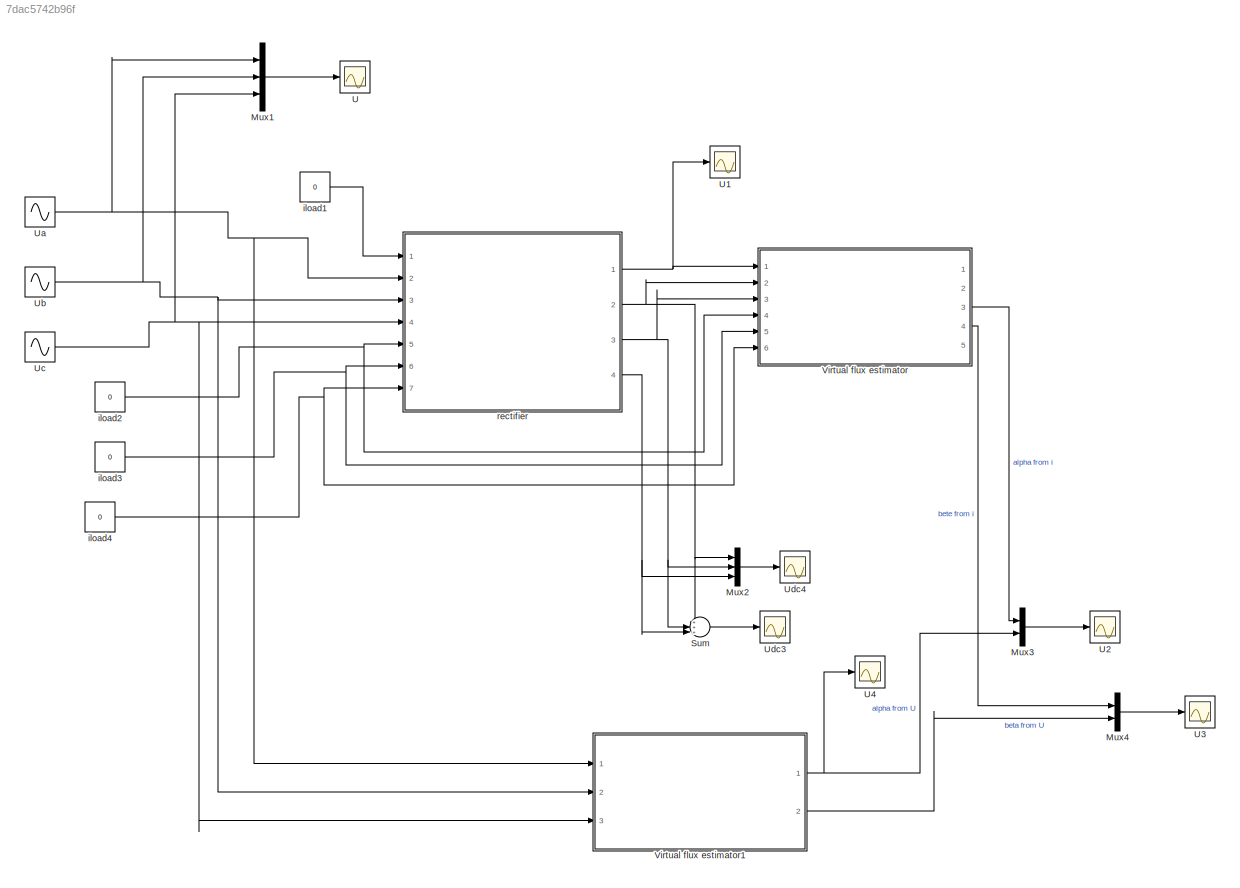
MODEL slx_7dac5742b96f
KIND model
CONFIG AbsTol = auto
CONFIG FixedStep = Ts
CONFIG MaxStep = auto
CONFIG MinStep = auto
CONFIG RelTol = 1e-3
CONFIG SampleTimeConstraint = Unconstrained
CONFIG Solver = ode3
CONFIG SolverMode = Auto
CONFIG SolverName = ode3
CONFIG StartTime = 0.0
CONFIG StopTime = 1
BLOCK [Mux] Mux1
  DisplayOption = bar
  Inputs = 3
  Ports = [3, 1]
BLOCK [Mux] Mux2
  DisplayOption = bar
  Inputs = 3
  Ports = [3, 1]
BLOCK [Mux] Mux3
  DisplayOption = bar
  Inputs = 2
  Ports = [2, 1]
BLOCK [Mux] Mux4
  DisplayOption = bar
  Inputs = 2
  Ports = [2, 1]
BLOCK [Sum] Sum
  IconShape = round
  InputSameDT = off
  Inputs = +++
  OutDataTypeStr = Inherit: Inherit via internal rule
  Ports = [3, 1]
  SaturateOnIntegerOverflow = off
BLOCK [Scope] U
  Floating = off
  LimitDataPoints = off
  NumInputPorts = 1
  Ports = [1]
  SaveName = Udc_plot
  SaveToWorkspace = on
  ShowLegends = on
  YMax = 800
  YMin = -800
  ZoomMode = xonly
BLOCK [Scope] U1
  Floating = off
  LimitDataPoints = off
  NumInputPorts = 1
  Ports = [1]
  SaveName = Udc_plot1
  SaveToWorkspace = on
  ShowLegends = on
  YMax = 800
  YMin = -800
  ZoomMode = xonly
BLOCK [Scope] U2
  Floating = off
  LegendLocations = 0.89097     0.91727    0.061979    0.037539
  LimitDataPoints = off
  NumInputPorts = 1
  Ports = [1]
  SaveName = Udc_plot4
  SaveToWorkspace = on
  ShowLegends = on
  YMax = 800
  YMin = -800
  ZoomMode = xonly
BLOCK [Scope] U3
  Floating = off
  LimitDataPoints = off
  NumInputPorts = 1
  Ports = [1]
  SaveName = Udc_plot5
  SaveToWorkspace = on
  ShowLegends = on
  YMax = 800
  YMin = -800
  ZoomMode = xonly
BLOCK [Scope] U4
  Floating = off
  LimitDataPoints = off
  NumInputPorts = 1
  Ports = [1]
  SaveName = Udc_plot6
  SaveToWorkspace = on
  ShowLegends = on
  YMax = 2.5
  YMin = -0.25
  ZoomMode = xonly
BLOCK [Sin] Ua
  Amplitude = U
  Frequency = w
  Ports = [0, 1]
  SampleTime = 0
BLOCK [Sin] Ub
  Amplitude = U
  Frequency = w
  Phase = -2*pi/3
  Ports = [0, 1]
  SampleTime = 0
BLOCK [Sin] Uc
  Amplitude = U
  Frequency = w
  Phase = -4*pi/3
  Ports = [0, 1]
  SampleTime = 0
BLOCK [Scope] Udc3
  Floating = off
  LimitDataPoints = off
  NumInputPorts = 1
  Ports = [1]
  SaveName = Udc_plot2
  SaveToWorkspace = on
  ShowLegends = on
  YMax = 800
  YMin = -800
  ZoomMode = xonly
BLOCK [Scope] Udc4
  Floating = off
  LegendLocations = 0.92691     0.93361    0.054687    0.053876
  LimitDataPoints = off
  NumInputPorts = 1
  Ports = [1]
  SaveName = Udc_plot3
  SaveToWorkspace = on
  ShowLegends = on
  YMax = 800
  YMin = -800
  ZoomMode = xonly
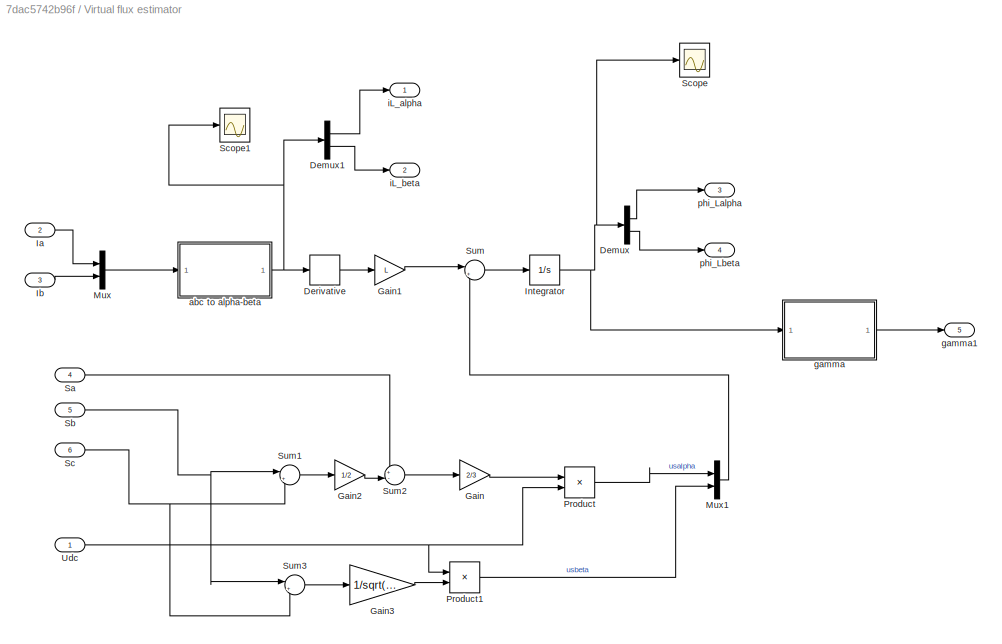
BLOCK [SubSystem] Virtual flux estimator
  Ports = [6, 5]
  RequestExecContextInheritance = off
BLOCK [Demux] Virtual flux estimator/Demux
  DisplayOption = bar
  Outputs = 2
  Ports = [1, 2]
BLOCK [Demux] Virtual flux estimator/Demux1
  DisplayOption = bar
  Outputs = 2
  Ports = [1, 2]
BLOCK [Derivative] Virtual flux estimator/Derivative
BLOCK [Gain] Virtual flux estimator/Gain
  Gain = 2/3
  OutDataTypeStr = Inherit: Inherit via internal rule
  ParamDataTypeStr = Inherit: Inherit via internal rule
  SaturateOnIntegerOverflow = off
BLOCK [Gain] Virtual flux estimator/Gain1
  Gain = L
  OutDataTypeStr = Inherit: Inherit via internal rule
  ParamDataTypeStr = Inherit: Inherit via internal rule
  SaturateOnIntegerOverflow = off
BLOCK [Gain] Virtual flux estimator/Gain2
  Gain = 1/2
  OutDataTypeStr = Inherit: Inherit via internal rule
  ParamDataTypeStr = Inherit: Inherit via internal rule
  SaturateOnIntegerOverflow = off
BLOCK [Gain] Virtual flux estimator/Gain3
  Gain = 1/sqrt(3)
  OutDataTypeStr = Inherit: Inherit via internal rule
  ParamDataTypeStr = Inherit: Inherit via internal rule
  SaturateOnIntegerOverflow = off
BLOCK [Inport] Virtual flux estimator/Ia
  IconDisplay = Port number
  Port = 2
BLOCK [Inport] Virtual flux estimator/Ib
  IconDisplay = Port number
  Port = 3
BLOCK [Integrator] Virtual flux estimator/Integrator
  Ports = [1, 1]
BLOCK [Mux] Virtual flux estimator/Mux
  DisplayOption = bar
  Inputs = 2
  Ports = [2, 1]
BLOCK [Mux] Virtual flux estimator/Mux1
  DisplayOption = bar
  Inputs = 2
  Ports = [2, 1]
BLOCK [Product] Virtual flux estimator/Product
  InputSameDT = off
  OutDataTypeStr = Inherit: Inherit via internal rule
  Ports = [2, 1]
  RndMeth = Floor
  SaturateOnIntegerOverflow = off
BLOCK [Product] Virtual flux estimator/Product1
  InputSameDT = off
  OutDataTypeStr = Inherit: Inherit via internal rule
  Ports = [2, 1]
  RndMeth = Floor
  SaturateOnIntegerOverflow = off
BLOCK [Inport] Virtual flux estimator/Sa
  IconDisplay = Port number
  Port = 4
BLOCK [Inport] Virtual flux estimator/Sb
  IconDisplay = Port number
  Port = 5
BLOCK [Inport] Virtual flux estimator/Sc
  IconDisplay = Port number
  Port = 6
BLOCK [Scope] Virtual flux estimator/Scope
  Floating = off
  LegendLocations = 0.89163     0.91704     0.11795    0.038015
  LimitDataPoints = off
  NumInputPorts = 1
  Ports = [1]
  ShowLegends = on
  YMax = 1.5
  YMin = -1.5
  ZoomMode = xonly
BLOCK [Scope] Virtual flux estimator/Scope1
  Floating = off
  LimitDataPoints = off
  NumInputPorts = 1
  Ports = [1]
  SaveName = ScopeData1
  YMax = 450
  YMin = -450
BLOCK [Sum] Virtual flux estimator/Sum
  IconShape = round
  InputSameDT = off
  Inputs = |++
  OutDataTypeStr = Inherit: Inherit via internal rule
  Ports = [2, 1]
  SaturateOnIntegerOverflow = off
BLOCK [Sum] Virtual flux estimator/Sum1
  IconShape = round
  InputSameDT = off
  Inputs = |++
  OutDataTypeStr = Inherit: Inherit via internal rule
  Ports = [2, 1]
  SaturateOnIntegerOverflow = off
BLOCK [Sum] Virtual flux estimator/Sum2
  IconShape = round
  InputSameDT = off
  Inputs = +-|
  OutDataTypeStr = Inherit: Inherit via internal rule
  Ports = [2, 1]
  SaturateOnIntegerOverflow = off
BLOCK [Sum] Virtual flux estimator/Sum3
  IconShape = round
  InputSameDT = off
  Inputs = |+-
  OutDataTypeStr = Inherit: Inherit via internal rule
  Ports = [2, 1]
  SaturateOnIntegerOverflow = off
BLOCK [Inport] Virtual flux estimator/Udc
  IconDisplay = Port number
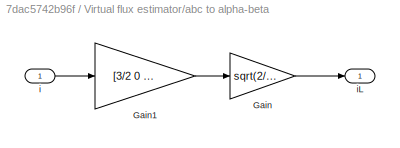
BLOCK [SubSystem] Virtual flux estimator/abc to alpha-beta
  Ports = [1, 1]
  RequestExecContextInheritance = off
BLOCK [Gain] Virtual flux estimator/abc to alpha-beta/Gain
  Gain = sqrt(2/3)
  OutDataTypeStr = Inherit: Inherit via internal rule
  ParamDataTypeStr = Inherit: Inherit via internal rule
  SaturateOnIntegerOverflow = off
BLOCK [Gain] Virtual flux estimator/abc to alpha-beta/Gain1
  Gain = [3/2 0 ; sqrt(3)/2 sqrt(3)]
  Multiplication = Matrix(K*u)
  OutDataTypeStr = Inherit: Inherit via internal rule
  ParamDataTypeStr = Inherit: Inherit via internal rule
  SaturateOnIntegerOverflow = off
BLOCK [Inport] Virtual flux estimator/abc to alpha-beta/i
  IconDisplay = Port number
BLOCK [Outport] Virtual flux estimator/abc to alpha-beta/iL
  IconDisplay = Port number
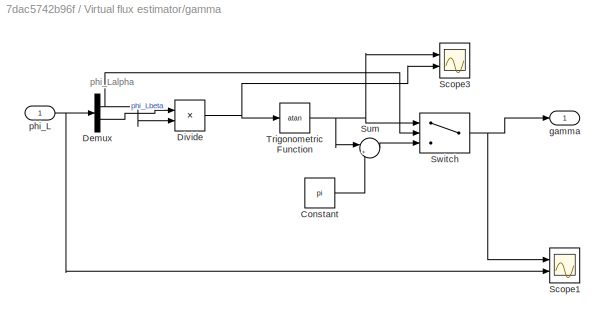
BLOCK [SubSystem] Virtual flux estimator/gamma
  Ports = [1, 1]
  RequestExecContextInheritance = off
BLOCK [Constant] Virtual flux estimator/gamma/Constant
  Value = pi
BLOCK [Demux] Virtual flux estimator/gamma/Demux
  DisplayOption = bar
  Outputs = 2
  Ports = [1, 2]
BLOCK [Product] Virtual flux estimator/gamma/Divide
  InputSameDT = off
  Inputs = */
  OutDataTypeStr = Inherit: Inherit via internal rule
  Ports = [2, 1]
  RndMeth = Floor
  SaturateOnIntegerOverflow = off
BLOCK [Scope] Virtual flux estimator/gamma/Scope1
  Floating = off
  LegendLocations = 0.93472     0.93361    0.046354    0.021203\n 0.9316     0.44178    0.048437    0.037539
  LimitDataPoints = off
  NumInputPorts = 2
  Ports = [2]
  SaveName = ScopeData3
  ShowLegends = on
  YMax = 5~2
  YMin = -2~-1.25
  ZoomMode = xonly
BLOCK [Scope] Virtual flux estimator/gamma/Scope3
  Floating = off
  LimitDataPoints = off
  NumInputPorts = 2
  Ports = [2]
  SaveName = ScopeData2
  YMax = 1.75~300
  YMin = -1.75~-500
  ZoomMode = xonly
BLOCK [Sum] Virtual flux estimator/gamma/Sum
  IconShape = round
  InputSameDT = off
  Inputs = |++
  OutDataTypeStr = Inherit: Inherit via internal rule
  Ports = [2, 1]
  SaturateOnIntegerOverflow = off
BLOCK [Switch] Virtual flux estimator/gamma/Switch
  Criteria = u2 > Threshold
  InputSameDT = off
  SaturateOnIntegerOverflow = off
BLOCK [Trigonometry] Virtual flux estimator/gamma/Trigonometric Function
  Operator = atan
  Ports = [1, 1]
BLOCK [Outport] Virtual flux estimator/gamma/gamma
  IconDisplay = Port number
BLOCK [Inport] Virtual flux estimator/gamma/phi_L
  IconDisplay = Port number
BLOCK [Outport] Virtual flux estimator/gamma1
  IconDisplay = Port number
  Port = 5
BLOCK [Outport] Virtual flux estimator/iL_alpha
  IconDisplay = Port number
BLOCK [Outport] Virtual flux estimator/iL_beta 
  IconDisplay = Port number
  Port = 2
BLOCK [Outport] Virtual flux estimator/phi_Lalpha
  IconDisplay = Port number
  Port = 3
BLOCK [Outport] Virtual flux estimator/phi_Lbeta
  IconDisplay = Port number
  Port = 4
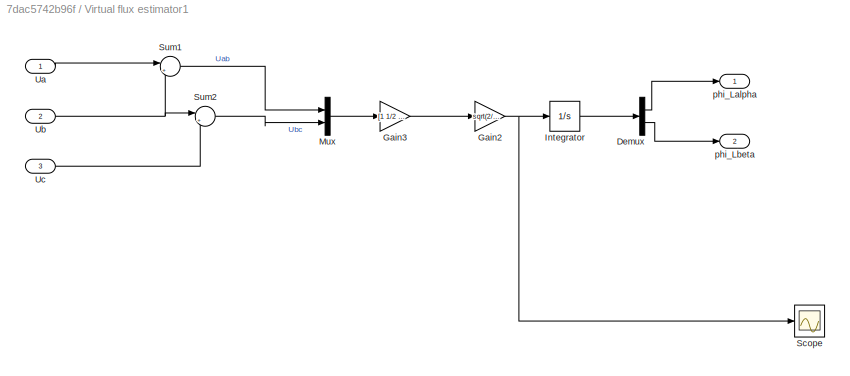
BLOCK [SubSystem] Virtual flux estimator1
  Ports = [3, 2]
  RequestExecContextInheritance = off
BLOCK [Demux] Virtual flux estimator1/Demux
  DisplayOption = bar
  Outputs = 2
  Ports = [1, 2]
BLOCK [Gain] Virtual flux estimator1/Gain2
  Gain = sqrt(2/3)
  OutDataTypeStr = Inherit: Inherit via internal rule
  ParamDataTypeStr = Inherit: Inherit via internal rule
  SaturateOnIntegerOverflow = off
BLOCK [Gain] Virtual flux estimator1/Gain3
  Gain = [1 1/2 ; 0 sqrt(3)/2]
  Multiplication = Matrix(K*u)
  OutDataTypeStr = Inherit: Inherit via internal rule
  ParamDataTypeStr = Inherit: Inherit via internal rule
  SaturateOnIntegerOverflow = off
BLOCK [Integrator] Virtual flux estimator1/Integrator
  Ports = [1, 1]
BLOCK [Mux] Virtual flux estimator1/Mux
  DisplayOption = bar
  Inputs = 2
  Ports = [2, 1]
BLOCK [Scope] Virtual flux estimator1/Scope
  Floating = off
  NumInputPorts = 1
  Ports = [1]
  SaveName = ScopeData4
  YMax = 550
  YMin = -550
BLOCK [Sum] Virtual flux estimator1/Sum1
  IconShape = round
  InputSameDT = off
  Inputs = |+-
  OutDataTypeStr = Inherit: Inherit via internal rule
  Ports = [2, 1]
  SaturateOnIntegerOverflow = off
BLOCK [Sum] Virtual flux estimator1/Sum2
  IconShape = round
  InputSameDT = off
  Inputs = |+-
  OutDataTypeStr = Inherit: Inherit via internal rule
  Ports = [2, 1]
  SaturateOnIntegerOverflow = off
BLOCK [Inport] Virtual flux estimator1/Ua
  IconDisplay = Port number
BLOCK [Inport] Virtual flux estimator1/Ub
  IconDisplay = Port number
  Port = 2
BLOCK [Inport] Virtual flux estimator1/Uc
  IconDisplay = Port number
  Port = 3
BLOCK [Outport] Virtual flux estimator1/phi_Lalpha
  IconDisplay = Port number
BLOCK [Outport] Virtual flux estimator1/phi_Lbeta
  IconDisplay = Port number
  Port = 2
BLOCK [Constant] iload1
  Value = 0
BLOCK [Constant] iload2
  Value = 0
BLOCK [Constant] iload3
  Value = 0
BLOCK [Constant] iload4
  Value = 0
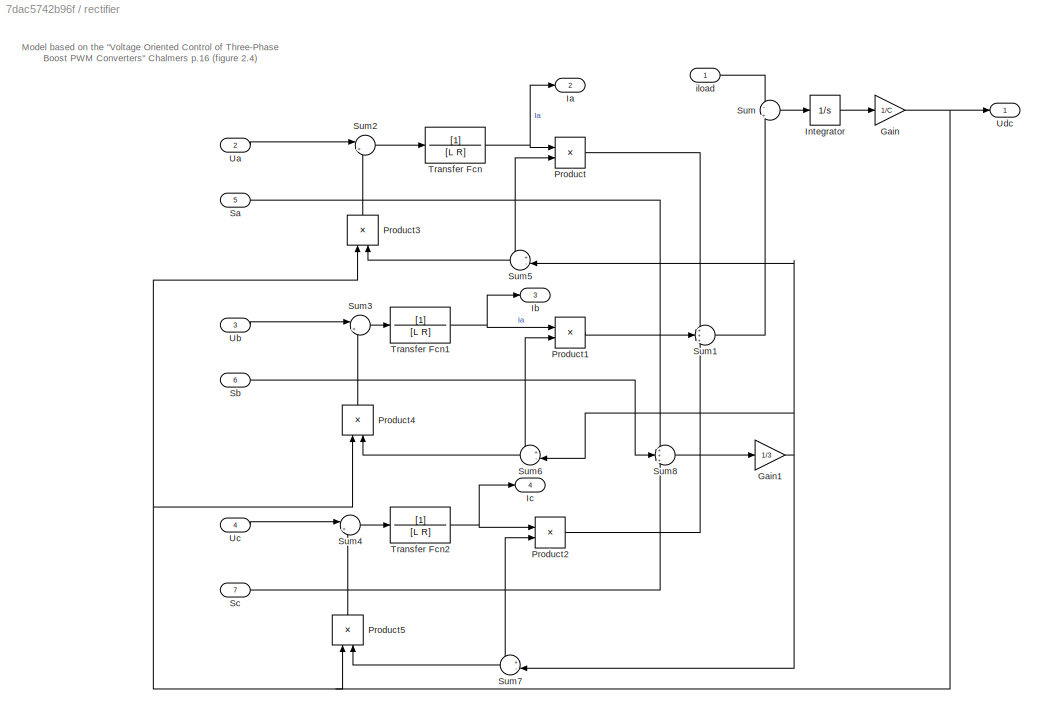
BLOCK [SubSystem] rectifier
  Ports = [7, 4]
  RequestExecContextInheritance = off
BLOCK [Gain] rectifier/Gain
  Gain = 1/C
  OutDataTypeStr = Inherit: Inherit via internal rule
  ParamDataTypeStr = Inherit: Inherit via internal rule
  SaturateOnIntegerOverflow = off
BLOCK [Gain] rectifier/Gain1
  Gain = 1/3
  OutDataTypeStr = Inherit: Inherit via internal rule
  ParamDataTypeStr = Inherit: Inherit via internal rule
  SaturateOnIntegerOverflow = off
BLOCK [Outport] rectifier/Ia
  IconDisplay = Port number
  Port = 2
BLOCK [Outport] rectifier/Ib
  IconDisplay = Port number
  Port = 3
BLOCK [Outport] rectifier/Ic
  IconDisplay = Port number
  Port = 4
BLOCK [Integrator] rectifier/Integrator
  Ports = [1, 1]
BLOCK [Product] rectifier/Product
  InputSameDT = off
  OutDataTypeStr = Inherit: Inherit via internal rule
  Ports = [2, 1]
  RndMeth = Floor
  SaturateOnIntegerOverflow = off
BLOCK [Product] rectifier/Product1
  InputSameDT = off
  OutDataTypeStr = Inherit: Inherit via internal rule
  Ports = [2, 1]
  RndMeth = Floor
  SaturateOnIntegerOverflow = off
BLOCK [Product] rectifier/Product2
  InputSameDT = off
  OutDataTypeStr = Inherit: Inherit via internal rule
  Ports = [2, 1]
  RndMeth = Floor
  SaturateOnIntegerOverflow = off
BLOCK [Product] rectifier/Product3
  InputSameDT = off
  OutDataTypeStr = Inherit: Inherit via internal rule
  Ports = [2, 1]
  RndMeth = Floor
  SaturateOnIntegerOverflow = off
BLOCK [Product] rectifier/Product4
  InputSameDT = off
  OutDataTypeStr = Inherit: Inherit via internal rule
  Ports = [2, 1]
  RndMeth = Floor
  SaturateOnIntegerOverflow = off
BLOCK [Product] rectifier/Product5
  InputSameDT = off
  OutDataTypeStr = Inherit: Inherit via internal rule
  Ports = [2, 1]
  RndMeth = Floor
  SaturateOnIntegerOverflow = off
BLOCK [Inport] rectifier/Sa
  IconDisplay = Port number
  Port = 5
BLOCK [Inport] rectifier/Sb
  IconDisplay = Port number
  Port = 6
BLOCK [Inport] rectifier/Sc
  IconDisplay = Port number
  Port = 7
BLOCK [Sum] rectifier/Sum
  IconShape = round
  InputSameDT = off
  Inputs = -|+
  OutDataTypeStr = Inherit: Inherit via internal rule
  Ports = [2, 1]
  SaturateOnIntegerOverflow = off
BLOCK [Sum] rectifier/Sum1
  IconShape = round
  InputSameDT = off
  Inputs = +++
  OutDataTypeStr = Inherit: Inherit via internal rule
  Ports = [3, 1]
  SaturateOnIntegerOverflow = off
BLOCK [Sum] rectifier/Sum2
  IconShape = round
  InputSameDT = off
  Inputs = |+-
  OutDataTypeStr = Inherit: Inherit via internal rule
  Ports = [2, 1]
  SaturateOnIntegerOverflow = off
BLOCK [Sum] rectifier/Sum3
  IconShape = round
  InputSameDT = off
  Inputs = |+-
  OutDataTypeStr = Inherit: Inherit via internal rule
  Ports = [2, 1]
  SaturateOnIntegerOverflow = off
BLOCK [Sum] rectifier/Sum4
  IconShape = round
  InputSameDT = off
  Inputs = |+-
  OutDataTypeStr = Inherit: Inherit via internal rule
  Ports = [2, 1]
  SaturateOnIntegerOverflow = off
BLOCK [Sum] rectifier/Sum5
  IconShape = round
  InputSameDT = off
  Inputs = +-|
  OutDataTypeStr = Inherit: Inherit via internal rule
  Ports = [2, 1]
  SaturateOnIntegerOverflow = off
BLOCK [Sum] rectifier/Sum6
  IconShape = round
  InputSameDT = off
  Inputs = +-|
  OutDataTypeStr = Inherit: Inherit via internal rule
  Ports = [2, 1]
  SaturateOnIntegerOverflow = off
BLOCK [Sum] rectifier/Sum7
  IconShape = round
  InputSameDT = off
  Inputs = +-|
  OutDataTypeStr = Inherit: Inherit via internal rule
  Ports = [2, 1]
  SaturateOnIntegerOverflow = off
BLOCK [Sum] rectifier/Sum8
  IconShape = round
  InputSameDT = off
  Inputs = +++
  OutDataTypeStr = Inherit: Inherit via internal rule
  Ports = [3, 1]
  SaturateOnIntegerOverflow = off
BLOCK [TransferFcn] rectifier/Transfer Fcn
  Denominator = [L R]
BLOCK [TransferFcn] rectifier/Transfer Fcn1
  Denominator = [L R]
BLOCK [TransferFcn] rectifier/Transfer Fcn2
  Denominator = [L R]
BLOCK [Inport] rectifier/Ua
  IconDisplay = Port number
  Port = 2
BLOCK [Inport] rectifier/Ub
  IconDisplay = Port number
  Port = 3
BLOCK [Inport] rectifier/Uc
  IconDisplay = Port number
  Port = 4
BLOCK [Outport] rectifier/Udc
  IconDisplay = Port number
BLOCK [Inport] rectifier/iload
  IconDisplay = Port number
ANNOTATION Virtual flux estimator/gamma: phi_Lalpha
ANNOTATION rectifier: Model based on the "Voltage Oriented Control of Three‐Phase Boost PWM Converters" Chalmers p.16 (figure 2.4)
LINE Mux1:1 -> U:1
LINE Mux2:1 -> Udc4:1
LINE Mux3:1 -> U2:1
LINE Mux4:1 -> U3:1
LINE Sum:1 -> Udc3:1
NET Ua:1 -> Mux1:1, Virtual flux estimator1:1, rectifier:2
NET Ub:1 -> Mux1:2, Virtual flux estimator1:2, rectifier:3
NET Uc:1 -> Mux1:3, Virtual flux estimator1:3, rectifier:4
LINE Virtual flux estimator/Demux1:1 -> Virtual flux estimator/iL_alpha:1
LINE Virtual flux estimator/Demux1:2 -> Virtual flux estimator/iL_beta :1
LINE Virtual flux estimator/Demux:1 -> Virtual flux estimator/phi_Lalpha:1
LINE Virtual flux estimator/Demux:2 -> Virtual flux estimator/phi_Lbeta:1
LINE Virtual flux estimator/Derivative:1 -> Virtual flux estimator/Gain1:1
LINE Virtual flux estimator/Gain1:1 -> Virtual flux estimator/Sum:1
LINE Virtual flux estimator/Gain2:1 -> Virtual flux estimator/Sum2:2
LINE Virtual flux estimator/Gain3:1 -> Virtual flux estimator/Product1:2
LINE Virtual flux estimator/Gain:1 -> Virtual flux estimator/Product:1
LINE Virtual flux estimator/Ia:1 -> Virtual flux estimator/Mux:1
LINE Virtual flux estimator/Ib:1 -> Virtual flux estimator/Mux:2
NET Virtual flux estimator/Integrator:1 -> Virtual flux estimator/Demux:1, Virtual flux estimator/Scope:1, Virtual flux estimator/gamma:1
LINE Virtual flux estimator/Mux1:1 -> Virtual flux estimator/Sum:2
LINE Virtual flux estimator/Mux:1 -> Virtual flux estimator/abc to alpha-beta:1
LINE Virtual flux estimator/Product1:1 -> Virtual flux estimator/Mux1:2
LINE Virtual flux estimator/Product:1 -> Virtual flux estimator/Mux1:1
LINE Virtual flux estimator/Sa:1 -> Virtual flux estimator/Sum2:1
NET Virtual flux estimator/Sb:1 -> Virtual flux estimator/Sum1:1, Virtual flux estimator/Sum3:1
NET Virtual flux estimator/Sc:1 -> Virtual flux estimator/Sum1:2, Virtual flux estimator/Sum3:2
LINE Virtual flux estimator/Sum1:1 -> Virtual flux estimator/Gain2:1
LINE Virtual flux estimator/Sum2:1 -> Virtual flux estimator/Gain:1
LINE Virtual flux estimator/Sum3:1 -> Virtual flux estimator/Gain3:1
LINE Virtual flux estimator/Sum:1 -> Virtual flux estimator/Integrator:1
NET Virtual flux estimator/Udc:1 -> Virtual flux estimator/Product1:1, Virtual flux estimator/Product:2
LINE Virtual flux estimator/abc to alpha-beta/Gain1:1 -> Virtual flux estimator/abc to alpha-beta/Gain:1
LINE Virtual flux estimator/abc to alpha-beta/Gain:1 -> Virtual flux estimator/abc to alpha-beta/iL:1
LINE Virtual flux estimator/abc to alpha-beta/i:1 -> Virtual flux estimator/abc to alpha-beta/Gain1:1
NET Virtual flux estimator/abc to alpha-beta:1 -> Virtual flux estimator/Demux1:1, Virtual flux estimator/Derivative:1, Virtual flux estimator/Scope1:1
LINE Virtual flux estimator/gamma/Constant:1 -> Virtual flux estimator/gamma/Sum:2
NET Virtual flux estimator/gamma/Demux:1 -> Virtual flux estimator/gamma/Divide:2, Virtual flux estimator/gamma/Switch:2
LINE Virtual flux estimator/gamma/Demux:2 -> Virtual flux estimator/gamma/Divide:1
NET Virtual flux estimator/gamma/Divide:1 -> Virtual flux estimator/gamma/Scope3:2, Virtual flux estimator/gamma/Trigonometric Function:1
LINE Virtual flux estimator/gamma/Sum:1 -> Virtual flux estimator/gamma/Switch:3
NET Virtual flux estimator/gamma/Switch:1 -> Virtual flux estimator/gamma/Scope1:1, Virtual flux estimator/gamma/gamma:1
NET Virtual flux estimator/gamma/Trigonometric Function:1 -> Virtual flux estimator/gamma/Scope3:1, Virtual flux estimator/gamma/Sum:1, Virtual flux estimator/gamma/Switch:1
NET Virtual flux estimator/gamma/phi_L:1 -> Virtual flux estimator/gamma/Demux:1, Virtual flux estimator/gamma/Scope1:2
LINE Virtual flux estimator/gamma:1 -> Virtual flux estimator/gamma1:1
LINE Virtual flux estimator1/Demux:1 -> Virtual flux estimator1/phi_Lalpha:1
LINE Virtual flux estimator1/Demux:2 -> Virtual flux estimator1/phi_Lbeta:1
NET Virtual flux estimator1/Gain2:1 -> Virtual flux estimator1/Integrator:1, Virtual flux estimator1/Scope:1
LINE Virtual flux estimator1/Gain3:1 -> Virtual flux estimator1/Gain2:1
LINE Virtual flux estimator1/Integrator:1 -> Virtual flux estimator1/Demux:1
LINE Virtual flux estimator1/Mux:1 -> Virtual flux estimator1/Gain3:1
LINE Virtual flux estimator1/Sum1:1 -> Virtual flux estimator1/Mux:1
LINE Virtual flux estimator1/Sum2:1 -> Virtual flux estimator1/Mux:2
LINE Virtual flux estimator1/Ua:1 -> Virtual flux estimator1/Sum1:1
NET Virtual flux estimator1/Ub:1 -> Virtual flux estimator1/Sum1:2, Virtual flux estimator1/Sum2:1
LINE Virtual flux estimator1/Uc:1 -> Virtual flux estimator1/Sum2:2
NET Virtual flux estimator1:1 -> Mux3:2, U4:1
LINE Virtual flux estimator1:2 -> Mux4:2
LINE Virtual flux estimator:3 -> Mux3:1
LINE Virtual flux estimator:4 -> Mux4:1
LINE iload1:1 -> rectifier:1
NET iload2:1 -> Virtual flux estimator:4, rectifier:5
NET iload3:1 -> Virtual flux estimator:5, rectifier:6
NET iload4:1 -> Virtual flux estimator:6, rectifier:7
NET rectifier/Gain1:1 -> rectifier/Sum5:2, rectifier/Sum6:2, rectifier/Sum7:2
NET rectifier/Gain:1 -> rectifier/Product3:1, rectifier/Product4:1, rectifier/Product5:1, rectifier/Udc:1
LINE rectifier/Integrator:1 -> rectifier/Gain:1
LINE rectifier/Product1:1 -> rectifier/Sum1:2
LINE rectifier/Product2:1 -> rectifier/Sum1:3
LINE rectifier/Product3:1 -> rectifier/Sum2:2
LINE rectifier/Product4:1 -> rectifier/Sum3:2
LINE rectifier/Product5:1 -> rectifier/Sum4:2
LINE rectifier/Product:1 -> rectifier/Sum1:1
NET rectifier/Sa:1 -> rectifier/Product:2, rectifier/Sum5:1, rectifier/Sum8:1
NET rectifier/Sb:1 -> rectifier/Product1:2, rectifier/Sum6:1, rectifier/Sum8:2
NET rectifier/Sc:1 -> rectifier/Product2:2, rectifier/Sum7:1, rectifier/Sum8:3
LINE rectifier/Sum1:1 -> rectifier/Sum:2
LINE rectifier/Sum2:1 -> rectifier/Transfer Fcn:1
LINE rectifier/Sum3:1 -> rectifier/Transfer Fcn1:1
LINE rectifier/Sum4:1 -> rectifier/Transfer Fcn2:1
LINE rectifier/Sum5:1 -> rectifier/Product3:2
LINE rectifier/Sum6:1 -> rectifier/Product4:2
LINE rectifier/Sum7:1 -> rectifier/Product5:2
LINE rectifier/Sum8:1 -> rectifier/Gain1:1
LINE rectifier/Sum:1 -> rectifier/Integrator:1
NET rectifier/Transfer Fcn1:1 -> rectifier/Ib:1, rectifier/Product1:1
NET rectifier/Transfer Fcn2:1 -> rectifier/Ic:1, rectifier/Product2:1
NET rectifier/Transfer Fcn:1 -> rectifier/Ia:1, rectifier/Product:1
LINE rectifier/Ua:1 -> rectifier/Sum2:1
LINE rectifier/Ub:1 -> rectifier/Sum3:1
LINE rectifier/Uc:1 -> rectifier/Sum4:1
LINE rectifier/iload:1 -> rectifier/Sum:1
NET rectifier:1 -> U1:1, Virtual flux estimator:1
NET rectifier:2 -> Mux2:1, Sum:1, Virtual flux estimator:2
NET rectifier:3 -> Mux2:2, Sum:2, Virtual flux estimator:3
NET rectifier:4 -> Mux2:3, Sum:3
note: NET lines group one-source signal fan-out (src -> all destinations, sorted); 1:1 wires keep LINE
